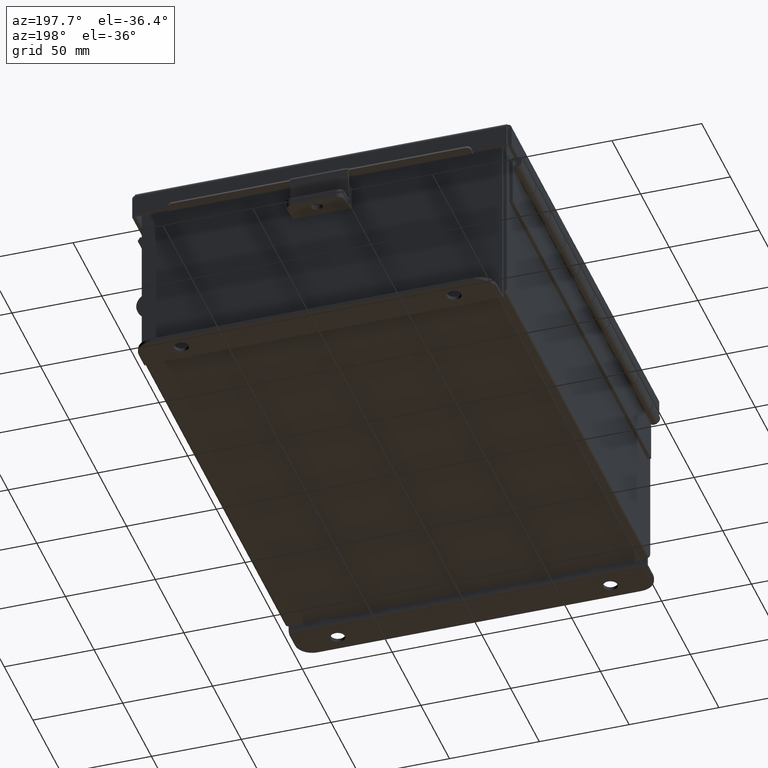
[diagram: clean part render]
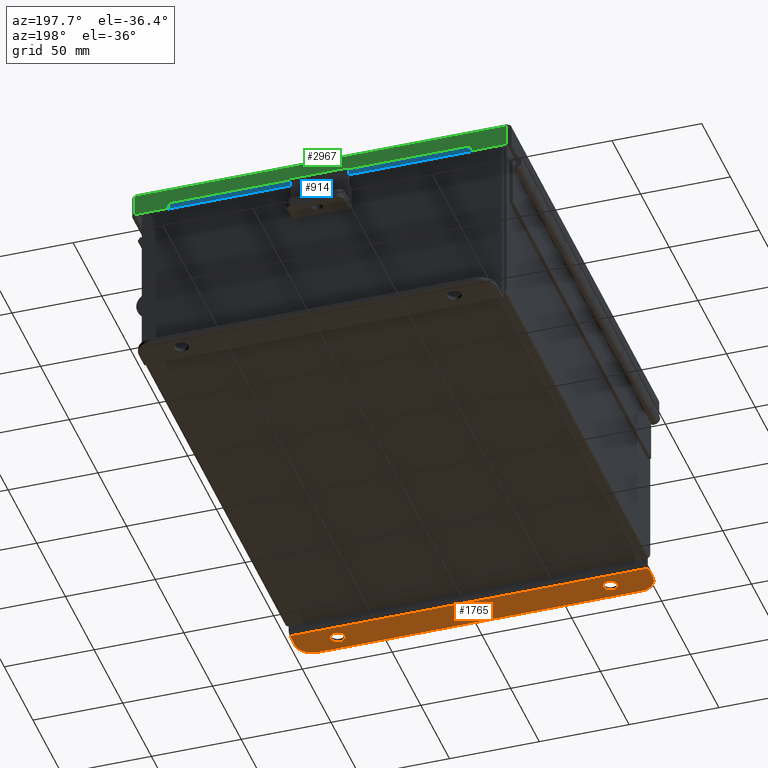
[diagram: same view with three faces highlighted in distinct colors, each labeled with its STEP entity id]
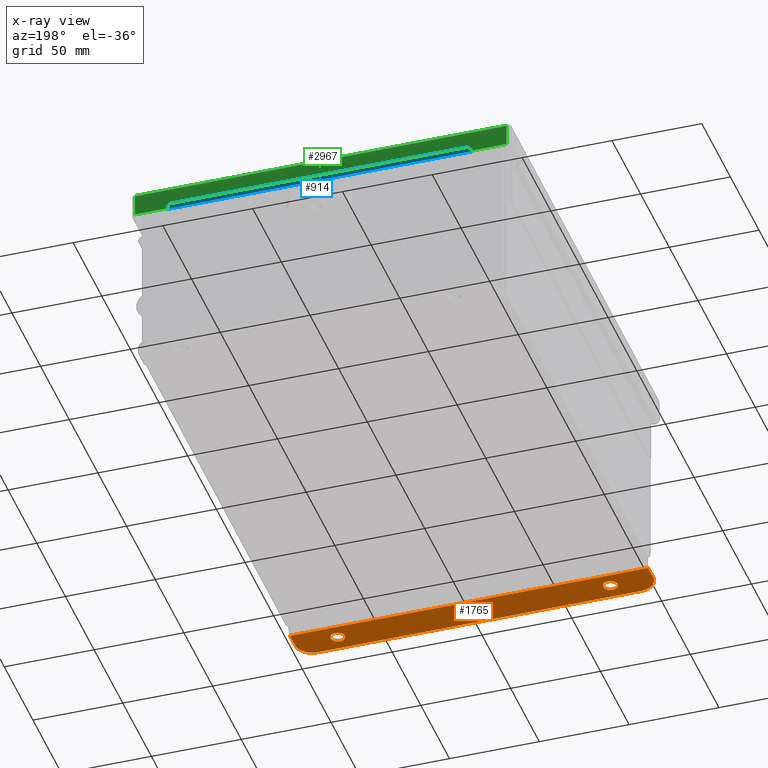
[diagram: x-ray of the same camera — body ghosted, the three highlighted faces saturated]
A machine part, auxiliary view with three faces highlighted in distinct colors.
The next image is the same camera in x-ray (body ghosted, the three faces saturated) — at least one of them is partly hidden behind the body in this view.
Their STEP definitions:

[orange] entity #1765 — the highlighted planar face has unit normal (0, -0, 1).
#272 = CIRCLE ( 'NONE', #14827, 0.3750000000000000600 ) ;
#481 = CIRCLE ( 'NONE', #11868, 0.1560000000000001900 ) ;
#682 = ORIENTED_EDGE ( 'NONE', *, *, #10275, .F. ) ;
#1103 = CARTESIAN_POINT ( 'NONE',  ( -3.925299999999994200, 0.01300000000000010700, -2.187000000000001200 ) ) ;
#1150 = DIRECTION ( 'NONE',  ( 1.000000000000000000, 3.479795166820746500E-017, -0.0000000000000000000 ) ) ;
#1302 = EDGE_CURVE ( 'NONE', #8721, #6369, #12538, .T. ) ;
#1646 = VERTEX_POINT ( 'NONE', #9628 ) ;
#1765 = ADVANCED_FACE ( 'NONE', ( #2293, #12126, #8820 ), #6678, .F. ) ;
#1958 = CARTESIAN_POINT ( 'NONE',  ( 2.987800000000005300, 0.3628000000000085000, -2.187000000000002500 ) ) ;
#2102 = CARTESIAN_POINT ( 'NONE',  ( -2.987799999999994200, 0.3627999999999997300, -2.187000000000002500 ) ) ;
#2153 = CARTESIAN_POINT ( 'NONE',  ( -3.550299999999994200, 0.3627999999999997300, -2.187000000000002500 ) ) ;
#2160 = CARTESIAN_POINT ( 'NONE',  ( 3.925300000000005300, 0.01300000000000775700, -2.187000000000001200 ) ) ;
#2194 = DIRECTION ( 'NONE',  ( 0.0000000000000000000, 1.000000000000000000, -3.502369222646487000E-015 ) ) ;
#2209 = ORIENTED_EDGE ( 'NONE', *, *, #9671, .F. ) ;
#2293 = FACE_BOUND ( 'NONE', #11385, .T. ) ;
#2314 = VECTOR ( 'NONE', #1150, 39.37007874015748100 ) ;
#2776 = VECTOR ( 'NONE', #14148, 39.37007874015748100 ) ;
#2907 = DIRECTION ( 'NONE',  ( 0.0000000000000000000, -3.362274453740631800E-015, -1.000000000000000000 ) ) ;
#2941 = DIRECTION ( 'NONE',  ( 3.994427860841574400E-031, 1.000000000000000000, -3.332425039709726500E-015 ) ) ;
#2958 = CARTESIAN_POINT ( 'NONE',  ( -2.987799999999994200, 0.3627999999999997300, -2.187000000000002500 ) ) ;
#2987 = CARTESIAN_POINT ( 'NONE',  ( -3.925299999999994200, -6.556435184794231700E-015, -2.187000000000003400 ) ) ;
#3268 = DIRECTION ( 'NONE',  ( 0.0000000000000000000, 1.000000000000000000, -3.502369222646487000E-015 ) ) ;
#3400 = DIRECTION ( 'NONE',  ( 0.0000000000000000000, 1.000000000000000000, -3.502369222646487000E-015 ) ) ;
#3473 = DIRECTION ( 'NONE',  ( 0.0000000000000000000, -1.000000000000000000, 3.642463991552350200E-015 ) ) ;
#3507 = DIRECTION ( 'NONE',  ( -0.0000000000000000000, -3.332425039709726500E-015, -1.000000000000000000 ) ) ;
#3542 = ORIENTED_EDGE ( 'NONE', *, *, #10423, .F. ) ;
#4706 = CIRCLE ( 'NONE', #10924, 0.3750000000000000600 ) ;
#4979 = EDGE_CURVE ( 'NONE', #9901, #13204, #481, .T. ) ;
#5375 = EDGE_CURVE ( 'NONE', #8721, #6910, #5611, .T. ) ;
#5608 = AXIS2_PLACEMENT_3D ( 'NONE', #13721, #6204, #14984 ) ;
#5611 = LINE ( 'NONE', #2987, #8641 ) ;
#5793 = AXIS2_PLACEMENT_3D ( 'NONE', #7124, #6540, #6436 ) ;
#5844 = ORIENTED_EDGE ( 'NONE', *, *, #5375, .T. ) ;
#6204 = DIRECTION ( 'NONE',  ( 0.0000000000000000000, -3.362274453740631800E-015, -1.000000000000000000 ) ) ;
#6369 = VERTEX_POINT ( 'NONE', #2160 ) ;
#6436 = DIRECTION ( 'NONE',  ( -3.994427860841588400E-031, -1.000000000000000000, 3.332425039709726500E-015 ) ) ;
#6471 = EDGE_CURVE ( 'NONE', #1646, #6369, #14053, .T. ) ;
#6540 = DIRECTION ( 'NONE',  ( -1.555753819465285400E-061, 3.332425039709726500E-015, 1.000000000000000000 ) ) ;
#6588 = VECTOR ( 'NONE', #12449, 39.37007874015748100 ) ;
#6678 = PLANE ( 'NONE',  #5793 ) ;
#6910 = VERTEX_POINT ( 'NONE', #13253 ) ;
#7124 = CARTESIAN_POINT ( 'NONE',  ( 0.0000000000000000000, -6.556435184794231700E-015, -2.187000000000001200 ) ) ;
#7726 = CARTESIAN_POINT ( 'NONE',  ( -2.987799999999998700, 0.2067999999999996000, -2.187000000000002100 ) ) ;
#7741 = VERTEX_POINT ( 'NONE', #13322 ) ;
#8275 = ORIENTED_EDGE ( 'NONE', *, *, #11009, .T. ) ;
#8641 = VECTOR ( 'NONE', #2941, 39.37007874015748100 ) ;
#8721 = VERTEX_POINT ( 'NONE', #1103 ) ;
#8820 = FACE_OUTER_BOUND ( 'NONE', #14590, .T. ) ;
#9526 = ORIENTED_EDGE ( 'NONE', *, *, #4979, .F. ) ;
#9628 = CARTESIAN_POINT ( 'NONE',  ( 3.925300000000005300, 0.3628000000000085000, -2.187000000000002500 ) ) ;
#9667 = LINE ( 'NONE', #12888, #2776 ) ;
#9671 = EDGE_CURVE ( 'NONE', #13204, #9901, #15571, .T. ) ;
#9901 = VERTEX_POINT ( 'NONE', #7726 ) ;
#10275 = EDGE_CURVE ( 'NONE', #14374, #13986, #11480, .T. ) ;
#10423 = EDGE_CURVE ( 'NONE', #13986, #14374, #12829, .T. ) ;
#10579 = ORIENTED_EDGE ( 'NONE', *, *, #11328, .T. ) ;
#10650 = VERTEX_POINT ( 'NONE', #15399 ) ;
#10802 = AXIS2_PLACEMENT_3D ( 'NONE', #2102, #11087, #3400 ) ;
#10838 = CARTESIAN_POINT ( 'NONE',  ( -2.987799999999994200, 0.5187999999999999300, -2.187000000000002900 ) ) ;
#10924 = AXIS2_PLACEMENT_3D ( 'NONE', #2153, #11149, #3473 ) ;
#10958 = DIRECTION ( 'NONE',  ( 0.0000000000000000000, -3.362274453740631800E-015, -1.000000000000000000 ) ) ;
#11009 = EDGE_CURVE ( 'NONE', #6910, #10650, #4706, .T. ) ;
#11087 = DIRECTION ( 'NONE',  ( 0.0000000000000000000, -3.362274453740631800E-015, -1.000000000000000000 ) ) ;
#11149 = DIRECTION ( 'NONE',  ( -0.0000000000000000000, -3.332425039709726500E-015, -1.000000000000000000 ) ) ;
#11182 = CARTESIAN_POINT ( 'NONE',  ( 3.550300000000004900, 0.3628000000000085000, -2.187000000000002500 ) ) ;
#11189 = CARTESIAN_POINT ( 'NONE',  ( 3.925300000000005300, 2.185478394931410600E-015, -2.187000000000001200 ) ) ;
#11328 = EDGE_CURVE ( 'NONE', #10650, #7741, #9667, .T. ) ;
#11385 = EDGE_LOOP ( 'NONE', ( #2209, #9526 ) ) ;
#11456 = EDGE_LOOP ( 'NONE', ( #682, #3542 ) ) ;
#11480 = CIRCLE ( 'NONE', #11855, 0.1560000000000001900 ) ;
#11568 = ORIENTED_EDGE ( 'NONE', *, *, #13833, .T. ) ;
#11855 = AXIS2_PLACEMENT_3D ( 'NONE', #1958, #10958, #3268 ) ;
#11868 = AXIS2_PLACEMENT_3D ( 'NONE', #2958, #2907, #2194 ) ;
#12126 = FACE_BOUND ( 'NONE', #11456, .T. ) ;
#12436 = DIRECTION ( 'NONE',  ( 0.0000000000000000000, -1.000000000000000000, 3.642463991552350200E-015 ) ) ;
#12449 = DIRECTION ( 'NONE',  ( -3.994427860841574400E-031, -1.000000000000000000, 3.332425039709726500E-015 ) ) ;
#12538 = LINE ( 'NONE', #12766, #2314 ) ;
#12766 = CARTESIAN_POINT ( 'NONE',  ( 3.925300000000005300, 0.01300000000000885000, -2.187000000000001200 ) ) ;
#12829 = CIRCLE ( 'NONE', #5608, 0.1560000000000001900 ) ;
#12888 = CARTESIAN_POINT ( 'NONE',  ( 0.0000000000000000000, 0.7378000000000000100, -2.187000000000003800 ) ) ;
#13129 = ORIENTED_EDGE ( 'NONE', *, *, #6471, .T. ) ;
#13204 = VERTEX_POINT ( 'NONE', #10838 ) ;
#13253 = CARTESIAN_POINT ( 'NONE',  ( -3.925299999999994200, 0.3627999999999997300, -2.187000000000002500 ) ) ;
#13322 = CARTESIAN_POINT ( 'NONE',  ( 3.550300000000004900, 0.7378000000000086700, -2.187000000000003800 ) ) ;
#13509 = CARTESIAN_POINT ( 'NONE',  ( 2.987800000000005300, 0.5188000000000087000, -2.187000000000002900 ) ) ;
#13705 = ORIENTED_EDGE ( 'NONE', *, *, #1302, .F. ) ;
#13721 = CARTESIAN_POINT ( 'NONE',  ( 2.987800000000005300, 0.3628000000000085000, -2.187000000000002500 ) ) ;
#13833 = EDGE_CURVE ( 'NONE', #7741, #1646, #272, .T. ) ;
#13986 = VERTEX_POINT ( 'NONE', #15155 ) ;
#14053 = LINE ( 'NONE', #11189, #6588 ) ;
#14148 = DIRECTION ( 'NONE',  ( 1.000000000000000000, 4.910036603141682400E-031, 0.0000000000000000000 ) ) ;
#14374 = VERTEX_POINT ( 'NONE', #13509 ) ;
#14590 = EDGE_LOOP ( 'NONE', ( #5844, #8275, #10579, #11568, #13129, #13705 ) ) ;
#14827 = AXIS2_PLACEMENT_3D ( 'NONE', #11182, #3507, #12436 ) ;
#14984 = DIRECTION ( 'NONE',  ( 0.0000000000000000000, 1.000000000000000000, -3.502369222646487000E-015 ) ) ;
#15155 = CARTESIAN_POINT ( 'NONE',  ( 2.987800000000000900, 0.2068000000000083400, -2.187000000000002100 ) ) ;
#15399 = CARTESIAN_POINT ( 'NONE',  ( -3.550299999999994200, 0.7378000000000000100, -2.187000000000003800 ) ) ;
#15571 = CIRCLE ( 'NONE', #10802, 0.1560000000000001900 ) ;

[blue] entity #914 — the highlighted planar face has unit normal (-0, -0.5, 0.866).
#228 = VERTEX_POINT ( 'NONE', #2461 ) ;
#497 = CIRCLE ( 'NONE', #11356, 0.09999999999999986700 ) ;
#643 = LINE ( 'NONE', #14707, #13861 ) ;
#767 = ORIENTED_EDGE ( 'NONE', *, *, #8724, .T. ) ;
#785 = ORIENTED_EDGE ( 'NONE', *, *, #6131, .T. ) ;
#847 = EDGE_CURVE ( 'NONE', #7695, #10820, #7254, .T. ) ;
#914 = ADVANCED_FACE ( 'NONE', ( #13118 ), #5849, .F. ) ;
#1051 = CARTESIAN_POINT ( 'NONE',  ( 3.224478932188135500, 5.298056350946112000, 0.4916841953253944200 ) ) ;
#1479 = AXIS2_PLACEMENT_3D ( 'NONE', #7628, #7513, #7341 ) ;
#1576 = DIRECTION ( 'NONE',  ( -1.000000000000000000, -4.003004735937425100E-017, 1.283964367700470700E-017 ) ) ;
#2406 = CARTESIAN_POINT ( 'NONE',  ( 3.324478932188133800, 5.207100000000002300, 0.5441978690286368700 ) ) ;
#2461 = CARTESIAN_POINT ( 'NONE',  ( 3.324478932188136100, 5.211453810567668700, 0.5416841953253942500 ) ) ;
#2908 = LINE ( 'NONE', #8905, #5583 ) ;
#3071 = ORIENTED_EDGE ( 'NONE', *, *, #847, .T. ) ;
#4014 = VERTEX_POINT ( 'NONE', #1051 ) ;
#4041 = EDGE_CURVE ( 'NONE', #10820, #8554, #16237, .T. ) ;
#5488 = DIRECTION ( 'NONE',  ( -8.895566079860907200E-018, 0.5000000000000020000, 0.8660254037844374900 ) ) ;
#5583 = VECTOR ( 'NONE', #15152, 39.37007874015748900 ) ;
#5719 = CARTESIAN_POINT ( 'NONE',  ( -3.224478932188134600, 5.298056350946112000, 0.4916841953253943700 ) ) ;
#5773 = DIRECTION ( 'NONE',  ( 0.0000000000000000000, 0.8660254037844374900, -0.5000000000000020000 ) ) ;
#5806 = DIRECTION ( 'NONE',  ( 8.895566079860907200E-018, -0.5000000000000020000, -0.8660254037844374900 ) ) ;
#5849 = PLANE ( 'NONE',  #6753 ) ;
#6131 = EDGE_CURVE ( 'NONE', #4014, #7695, #643, .T. ) ;
#6259 = VECTOR ( 'NONE', #16481, 39.37007874015748100 ) ;
#6753 = AXIS2_PLACEMENT_3D ( 'NONE', #6922, #5806, #5773 ) ;
#6922 = CARTESIAN_POINT ( 'NONE',  ( -2.723011907352020600E-017, 1.537419589632089900, 2.662888841794459200 ) ) ;
#7254 = CIRCLE ( 'NONE', #1479, 0.09999999999999986700 ) ;
#7341 = DIRECTION ( 'NONE',  ( 0.0000000000000000000, 0.8660254037844370400, -0.5000000000000028900 ) ) ;
#7513 = DIRECTION ( 'NONE',  ( -8.895566079860907200E-018, 0.5000000000000020000, 0.8660254037844374900 ) ) ;
#7560 = EDGE_CURVE ( 'NONE', #10479, #8554, #13899, .T. ) ;
#7628 = CARTESIAN_POINT ( 'NONE',  ( -3.224478932188134600, 5.211453810567668700, 0.5416841953253944700 ) ) ;
#7695 = VERTEX_POINT ( 'NONE', #5719 ) ;
#8554 = VERTEX_POINT ( 'NONE', #11392 ) ;
#8724 = EDGE_CURVE ( 'NONE', #10479, #228, #2908, .T. ) ;
#8732 = EDGE_LOOP ( 'NONE', ( #785, #3071, #14210, #16502, #767, #11103 ) ) ;
#8905 = CARTESIAN_POINT ( 'NONE',  ( 3.324478932188136100, 5.298056350946112000, 0.4916841953253943700 ) ) ;
#10479 = VERTEX_POINT ( 'NONE', #2406 ) ;
#10820 = VERTEX_POINT ( 'NONE', #14484 ) ;
#11103 = ORIENTED_EDGE ( 'NONE', *, *, #12364, .T. ) ;
#11356 = AXIS2_PLACEMENT_3D ( 'NONE', #13053, #5488, #14315 ) ;
#11392 = CARTESIAN_POINT ( 'NONE',  ( -3.324478932188134700, 5.207100000000003200, 0.5441978690286363200 ) ) ;
#12364 = EDGE_CURVE ( 'NONE', #228, #4014, #497, .T. ) ;
#13053 = CARTESIAN_POINT ( 'NONE',  ( 3.224478932188135500, 5.211453810567668700, 0.5416841953253945800 ) ) ;
#13118 = FACE_OUTER_BOUND ( 'NONE', #8732, .T. ) ;
#13503 = VECTOR ( 'NONE', #1576, 39.37007874015748100 ) ;
#13861 = VECTOR ( 'NONE', #14592, 39.37007874015748100 ) ;
#13899 = LINE ( 'NONE', #14312, #13503 ) ;
#14210 = ORIENTED_EDGE ( 'NONE', *, *, #4041, .T. ) ;
#14312 = CARTESIAN_POINT ( 'NONE',  ( -2.013308368463153000E-016, 5.207100000000002300, 0.5441978690286370900 ) ) ;
#14315 = DIRECTION ( 'NONE',  ( -5.463695987328533500E-015, 0.8660254037844370400, -0.5000000000000028900 ) ) ;
#14484 = CARTESIAN_POINT ( 'NONE',  ( -3.324478932188134700, 5.211453810567668700, 0.5416841953253944700 ) ) ;
#14592 = DIRECTION ( 'NONE',  ( -1.000000000000000000, -0.0000000000000000000, -1.027171494160361100E-017 ) ) ;
#14707 = CARTESIAN_POINT ( 'NONE',  ( -3.324478932188134700, 5.298056350946112000, 0.4916841953253943700 ) ) ;
#15152 = DIRECTION ( 'NONE',  ( -0.0000000000000000000, 0.8660254037844382600, -0.5000000000000007800 ) ) ;
#16012 = CARTESIAN_POINT ( 'NONE',  ( -3.324478932188134700, 5.193600000000001800, 0.5519920976626971900 ) ) ;
#16237 = LINE ( 'NONE', #16012, #6259 ) ;
#16481 = DIRECTION ( 'NONE',  ( -0.0000000000000000000, -0.8660254037844374900, 0.5000000000000020000 ) ) ;
#16502 = ORIENTED_EDGE ( 'NONE', *, *, #7560, .F. ) ;

[green] entity #2967 — the highlighted planar face has unit normal (-0, -1, -0).
#323 = CARTESIAN_POINT ( 'NONE',  ( 3.324478932188136100, 5.156250000000000900, 0.4717115427318793700 ) ) ;
#407 = CARTESIAN_POINT ( 'NONE',  ( -4.003697826504046900E-018, 5.156250000000000900, 0.4872999999999997900 ) ) ;
#436 = ORIENTED_EDGE ( 'NONE', *, *, #11935, .F. ) ;
#1073 = VECTOR ( 'NONE', #11995, 39.37007874015748100 ) ;
#1354 = ORIENTED_EDGE ( 'NONE', *, *, #12429, .F. ) ;
#1478 = LINE ( 'NONE', #5282, #11341 ) ;
#1818 = EDGE_CURVE ( 'NONE', #3458, #11563, #1478, .T. ) ;
#1933 = CARTESIAN_POINT ( 'NONE',  ( 4.156250000000000900, 5.156249999999999100, 0.01299999999999978100 ) ) ;
#2357 = EDGE_CURVE ( 'NONE', #14991, #9042, #9285, .T. ) ;
#2495 = ORIENTED_EDGE ( 'NONE', *, *, #15147, .F. ) ;
#2749 = LINE ( 'NONE', #323, #12936 ) ;
#2918 = VECTOR ( 'NONE', #15871, 39.37007874015748100 ) ;
#2967 = ADVANCED_FACE ( 'NONE', ( #6908 ), #13742, .F. ) ;
#3322 = LINE ( 'NONE', #1933, #2918 ) ;
#3458 = VERTEX_POINT ( 'NONE', #11994 ) ;
#3517 = LINE ( 'NONE', #5513, #9976 ) ;
#4221 = CARTESIAN_POINT ( 'NONE',  ( 3.324478932188136100, 5.156250000000000900, 0.4872999999999997900 ) ) ;
#4631 = DIRECTION ( 'NONE',  ( 1.000000000000000000, 0.0000000000000000000, 8.216084191471467500E-018 ) ) ;
#4814 = DIRECTION ( 'NONE',  ( -1.401985044024155600E-013, -7.009925220120777900E-014, -1.000000000000000000 ) ) ;
#5282 = CARTESIAN_POINT ( 'NONE',  ( -3.324478932188134700, 5.156250000000000900, 0.4717115427318793700 ) ) ;
#5513 = CARTESIAN_POINT ( 'NONE',  ( 4.074478932188135600, 5.156249999999999100, -3.350199796867980800E-016 ) ) ;
#5539 = VERTEX_POINT ( 'NONE', #11793 ) ;
#5640 = CARTESIAN_POINT ( 'NONE',  ( -4.074478932188134700, 5.156250000000000900, 0.4872999999999997300 ) ) ;
#6055 = DIRECTION ( 'NONE',  ( 0.0000000000000000000, 7.009925220120717300E-014, 1.000000000000000000 ) ) ;
#6525 = CARTESIAN_POINT ( 'NONE',  ( 4.074478932188135600, 5.156250000000000900, 0.4872999999999997900 ) ) ;
#6683 = ORIENTED_EDGE ( 'NONE', *, *, #1818, .F. ) ;
#6872 = CARTESIAN_POINT ( 'NONE',  ( -4.074478932188135600, 5.156249999999999100, 0.01299999999999978100 ) ) ;
#6908 = FACE_OUTER_BOUND ( 'NONE', #13762, .T. ) ;
#7606 = VECTOR ( 'NONE', #4631, 39.37007874015748100 ) ;
#7700 = LINE ( 'NONE', #12407, #11393 ) ;
#8157 = DIRECTION ( 'NONE',  ( -1.000000000000000000, -0.0000000000000000000, -0.0000000000000000000 ) ) ;
#8320 = CARTESIAN_POINT ( 'NONE',  ( -3.324478932188134300, 5.156250000000000900, 0.4872999999999997900 ) ) ;
#8613 = ORIENTED_EDGE ( 'NONE', *, *, #16178, .F. ) ;
#9042 = VERTEX_POINT ( 'NONE', #5640 ) ;
#9063 = DIRECTION ( 'NONE',  ( -0.0000000000000000000, 4.484872552701437000E-015, 1.000000000000000000 ) ) ;
#9273 = ORIENTED_EDGE ( 'NONE', *, *, #9639, .T. ) ;
#9285 = LINE ( 'NONE', #9780, #12595 ) ;
#9501 = CARTESIAN_POINT ( 'NONE',  ( 3.324478932188133800, 5.156250000000000900, 0.4717115427318793700 ) ) ;
#9639 = EDGE_CURVE ( 'NONE', #9042, #11563, #16346, .T. ) ;
#9780 = CARTESIAN_POINT ( 'NONE',  ( -4.074478932188134700, 5.156249999999999100, -2.338593775587836400E-014 ) ) ;
#9834 = DIRECTION ( 'NONE',  ( 0.0000000000000000000, 4.484872552701437000E-015, 1.000000000000000000 ) ) ;
#9976 = VECTOR ( 'NONE', #9063, 39.37007874015748100 ) ;
#10121 = VERTEX_POINT ( 'NONE', #9501 ) ;
#11317 = AXIS2_PLACEMENT_3D ( 'NONE', #14458, #12866, #12807 ) ;
#11341 = VECTOR ( 'NONE', #6055, 39.37007874015748100 ) ;
#11393 = VECTOR ( 'NONE', #4814, 39.37007874015748100 ) ;
#11506 = VERTEX_POINT ( 'NONE', #4221 ) ;
#11563 = VERTEX_POINT ( 'NONE', #8320 ) ;
#11793 = CARTESIAN_POINT ( 'NONE',  ( 4.074478932188135600, 5.156249999999999100, 0.01299999999999977400 ) ) ;
#11935 = EDGE_CURVE ( 'NONE', #11506, #10121, #7700, .T. ) ;
#11994 = CARTESIAN_POINT ( 'NONE',  ( -3.324478932188134700, 5.156250000000000900, 0.4717115427318793700 ) ) ;
#11995 = DIRECTION ( 'NONE',  ( 1.000000000000000000, 0.0000000000000000000, 8.216084191471467500E-018 ) ) ;
#12407 = CARTESIAN_POINT ( 'NONE',  ( 3.324478932188136100, 5.156250000000001800, 0.4872999999999995700 ) ) ;
#12429 = EDGE_CURVE ( 'NONE', #10121, #3458, #2749, .T. ) ;
#12595 = VECTOR ( 'NONE', #9834, 39.37007874015748100 ) ;
#12807 = DIRECTION ( 'NONE',  ( 0.0000000000000000000, -4.484872552701437000E-015, -1.000000000000000000 ) ) ;
#12866 = DIRECTION ( 'NONE',  ( -3.684809048101456200E-032, -1.000000000000000000, 4.484872552701437000E-015 ) ) ;
#12936 = VECTOR ( 'NONE', #8157, 39.37007874015748100 ) ;
#13491 = CARTESIAN_POINT ( 'NONE',  ( -4.003697826504046900E-018, 5.156250000000000900, 0.4872999999999997900 ) ) ;
#13742 = PLANE ( 'NONE',  #11317 ) ;
#13762 = EDGE_LOOP ( 'NONE', ( #436, #14052, #8613, #2495, #16369, #9273, #6683, #1354 ) ) ;
#14052 = ORIENTED_EDGE ( 'NONE', *, *, #14228, .T. ) ;
#14228 = EDGE_CURVE ( 'NONE', #11506, #16198, #14657, .T. ) ;
#14458 = CARTESIAN_POINT ( 'NONE',  ( 1.899979665427313000E-031, 5.156249999999999100, -2.338593775587836400E-014 ) ) ;
#14657 = LINE ( 'NONE', #407, #1073 ) ;
#14991 = VERTEX_POINT ( 'NONE', #6872 ) ;
#15147 = EDGE_CURVE ( 'NONE', #14991, #5539, #3322, .T. ) ;
#15871 = DIRECTION ( 'NONE',  ( 1.000000000000000000, -3.684809048101456200E-032, 1.613820990588604100E-046 ) ) ;
#16178 = EDGE_CURVE ( 'NONE', #5539, #16198, #3517, .T. ) ;
#16198 = VERTEX_POINT ( 'NONE', #6525 ) ;
#16346 = LINE ( 'NONE', #13491, #7606 ) ;
#16369 = ORIENTED_EDGE ( 'NONE', *, *, #2357, .T. ) ;